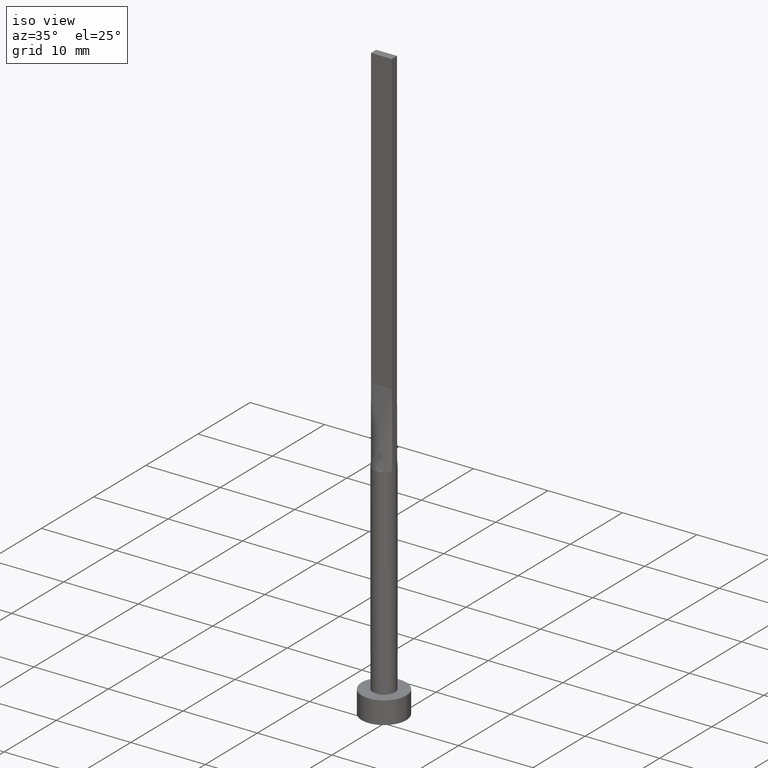
[diagram: clean part render]
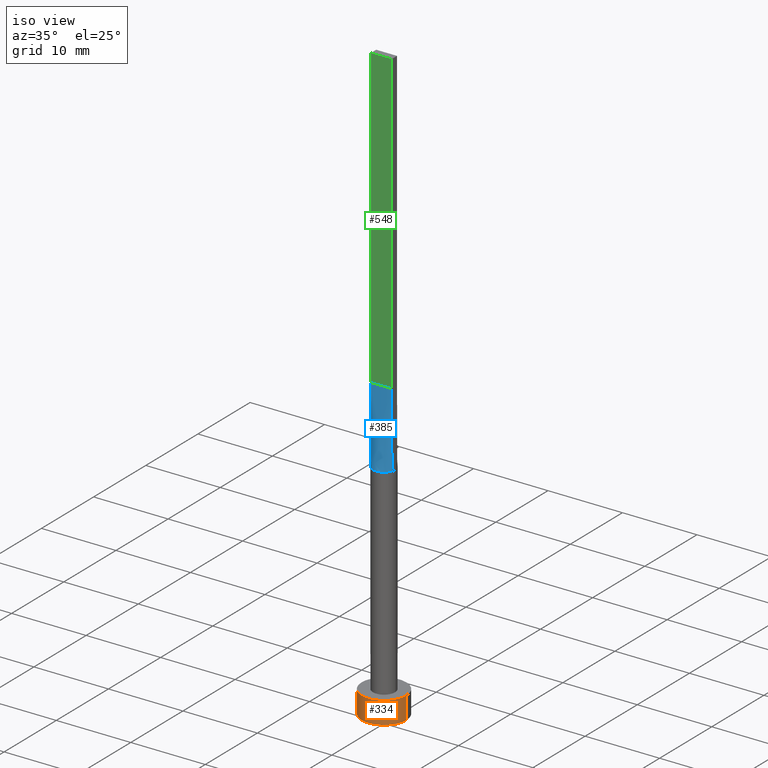
[diagram: same view with three faces highlighted in distinct colors, each labeled with its STEP entity id]
A machine part, iso view with three faces highlighted in distinct colors.
Their STEP definitions:

[orange] entity #334 — the highlighted cylindrical surface (edge-blend (fillet) strip) has radius 3 mm, axis along (-0, -0, -1).
#2 = VECTOR ( 'NONE', #118, 1000.000000000000000 ) ;
#46 = FACE_OUTER_BOUND ( 'NONE', #552, .T. ) ;
#49 = CARTESIAN_POINT ( 'NONE',  ( 0.000000000000000000, 0.000000000000000000, 3.000000000000000000 ) ) ;
#63 = CARTESIAN_POINT ( 'NONE',  ( -3.000000000000000444, 0.000000000000000000, 3.000000000000000000 ) ) ;
#93 = DIRECTION ( 'NONE',  ( -0.000000000000000000, -0.000000000000000000, -1.000000000000000000 ) ) ;
#118 = DIRECTION ( 'NONE',  ( -0.000000000000000000, -0.000000000000000000, -1.000000000000000000 ) ) ;
#119 = ORIENTED_EDGE ( 'NONE', *, *, #447, .F. ) ;
#121 = ORIENTED_EDGE ( 'NONE', *, *, #343, .T. ) ;
#130 = AXIS2_PLACEMENT_3D ( 'NONE', #49, #93, #537 ) ;
#148 = DIRECTION ( 'NONE',  ( 0.000000000000000000, 0.000000000000000000, 1.000000000000000000 ) ) ;
#160 = VERTEX_POINT ( 'NONE', #246 ) ;
#166 = AXIS2_PLACEMENT_3D ( 'NONE', #458, #148, #546 ) ;
#169 = CARTESIAN_POINT ( 'NONE',  ( -3.000000000000000444, 0.000000000000000000, 3.000000000000000000 ) ) ;
#176 = CYLINDRICAL_SURFACE ( 'NONE', #130, 3.000000000000000444 ) ;
#179 = EDGE_CURVE ( 'NONE', #218, #160, #422, .T. ) ;
#187 = EDGE_CURVE ( 'NONE', #379, #412, #253, .T. ) ;
#193 = CIRCLE ( 'NONE', #166, 3.000000000000000444 ) ;
#195 = CARTESIAN_POINT ( 'NONE',  ( 3.000000000000000444, 3.673940397442060361E-16, 3.000000000000000000 ) ) ;
#204 = CARTESIAN_POINT ( 'NONE',  ( 3.000000000000000444, 3.673940397442060361E-16, 3.000000000000000000 ) ) ;
#218 = VERTEX_POINT ( 'NONE', #195 ) ;
#242 = DIRECTION ( 'NONE',  ( -0.000000000000000000, -0.000000000000000000, -1.000000000000000000 ) ) ;
#246 = CARTESIAN_POINT ( 'NONE',  ( 3.000000000000000444, 3.673940397442060361E-16, 0.000000000000000000 ) ) ;
#253 = LINE ( 'NONE', #63, #339 ) ;
#283 = ORIENTED_EDGE ( 'NONE', *, *, #179, .F. ) ;
#334 = ADVANCED_FACE ( 'NONE', ( #46 ), #176, .T. ) ;
#339 = VECTOR ( 'NONE', #242, 1000.000000000000000 ) ;
#343 = EDGE_CURVE ( 'NONE', #412, #160, #369, .T. ) ;
#365 = DIRECTION ( 'NONE',  ( 1.000000000000000000, 0.000000000000000000, 0.000000000000000000 ) ) ;
#369 = CIRCLE ( 'NONE', #459, 3.000000000000000444 ) ;
#379 = VERTEX_POINT ( 'NONE', #169 ) ;
#406 = DIRECTION ( 'NONE',  ( 0.000000000000000000, 0.000000000000000000, 1.000000000000000000 ) ) ;
#412 = VERTEX_POINT ( 'NONE', #566 ) ;
#422 = LINE ( 'NONE', #204, #2 ) ;
#447 = EDGE_CURVE ( 'NONE', #379, #218, #193, .T. ) ;
#452 = CARTESIAN_POINT ( 'NONE',  ( 0.000000000000000000, 0.000000000000000000, 0.000000000000000000 ) ) ;
#458 = CARTESIAN_POINT ( 'NONE',  ( 0.000000000000000000, 0.000000000000000000, 3.000000000000000000 ) ) ;
#459 = AXIS2_PLACEMENT_3D ( 'NONE', #452, #406, #365 ) ;
#460 = ORIENTED_EDGE ( 'NONE', *, *, #187, .T. ) ;
#537 = DIRECTION ( 'NONE',  ( -1.000000000000000000, 0.000000000000000000, 0.000000000000000000 ) ) ;
#546 = DIRECTION ( 'NONE',  ( 1.000000000000000000, 0.000000000000000000, 0.000000000000000000 ) ) ;
#552 = EDGE_LOOP ( 'NONE', ( #283, #119, #460, #121 ) ) ;
#566 = CARTESIAN_POINT ( 'NONE',  ( -3.000000000000000444, 0.000000000000000000, 0.000000000000000000 ) ) ;

[blue] entity #385 — the highlighted face is a freeform B-spline surface patch.
#11 = AXIS2_PLACEMENT_3D ( 'NONE', #327, #374, #507 ) ;
#14 = EDGE_CURVE ( 'NONE', #143, #565, #286, .T. ) ;
#24 = CARTESIAN_POINT ( 'NONE',  ( -0.8182264876570952694, -1.266912425724809665, 29.99999999999999645 ) ) ;
#27 = CARTESIAN_POINT ( 'NONE',  ( -0.4666666666666679508, -0.4999999999999995559, 39.99999999999999289 ) ) ;
#29 = CARTESIAN_POINT ( 'NONE',  ( -1.373020107211261109, -0.6153643240040214124, 29.99999999999999645 ) ) ;
#67 = CARTESIAN_POINT ( 'NONE',  ( -1.316960349798174557, -0.7311494208568978248, 30.00000000000001421 ) ) ;
#76 = CARTESIAN_POINT ( 'NONE',  ( -1.161819288130434114, -0.9587178835757669271, 30.00000000000000355 ) ) ;
#81 = CARTESIAN_POINT ( 'NONE',  ( 0.8166666666666658747, -0.4999999999999997780, 39.99999999999999289 ) ) ;
#92 = CARTESIAN_POINT ( 'NONE',  ( -1.399999999999999911, -0.4999999999999995559, 40.00000000000000000 ) ) ;
#114 = CARTESIAN_POINT ( 'NONE',  ( 1.316960349798174335, -0.7311494208568987130, 30.00000000000000355 ) ) ;
#120 = CARTESIAN_POINT ( 'NONE',  ( -0.2333333333333347526, -0.4999999999999995559, 39.99999999999999289 ) ) ;
#124 = CARTESIAN_POINT ( 'NONE',  ( -1.399999999999999911, -0.4999999999999995559, 40.00000000000000000 ) ) ;
#131 = EDGE_CURVE ( 'NONE', #483, #143, #420, .T. ) ;
#143 = VERTEX_POINT ( 'NONE', #564 ) ;
#147 = VECTOR ( 'NONE', #527, 1000.000000000000114 ) ;
#158 = CARTESIAN_POINT ( 'NONE',  ( -1.166666666666666963, -0.4999999999999995559, 39.99999999999999289 ) ) ;
#161 = CARTESIAN_POINT ( 'NONE',  ( 1.062433464748102629, -1.070418989248103747, 30.00000000000001066 ) ) ;
#165 = CARTESIAN_POINT ( 'NONE',  ( -0.1166666666666681257, -0.4999999999999995559, 40.00000000000000000 ) ) ;
#203 = CARTESIAN_POINT ( 'NONE',  ( 0.4666666666666653418, -0.4999999999999995559, 39.99999999999999289 ) ) ;
#206 = CARTESIAN_POINT ( 'NONE',  ( -0.9333333333333340143, -0.4999999999999995559, 39.99999999999999289 ) ) ;
#208 = ORIENTED_EDGE ( 'NONE', *, *, #497, .F. ) ;
#210 = CARTESIAN_POINT ( 'NONE',  ( 0.3520402531411743752, -1.468082505288408113, 30.00000000000000355 ) ) ;
#231 = CARTESIAN_POINT ( 'NONE',  ( 1.399999999999999911, -0.4999999999999997780, 40.00000000000000000 ) ) ;
#248 = CARTESIAN_POINT ( 'NONE',  ( 1.412612867392256222, -0.5045045954972348090, 30.00000000000000000 ) ) ;
#250 = EDGE_LOOP ( 'NONE', ( #481, #397, #208, #382 ) ) ;
#252 = CARTESIAN_POINT ( 'NONE',  ( 0.9333333333333325710, -0.4999999999999997780, 39.99999999999999289 ) ) ;
#258 = CARTESIAN_POINT ( 'NONE',  ( 0.1761797990592584850, -1.499999999999999556, 30.00000000000000000 ) ) ;
#286 = CIRCLE ( 'NONE', #11, 1.500000000000000222 ) ;
#294 = CARTESIAN_POINT ( 'NONE',  ( 1.166666666666666075, -0.4999999999999997780, 39.99999999999999289 ) ) ;
#299 = CARTESIAN_POINT ( 'NONE',  ( -1.283333333333333437, -0.4999999999999995559, 39.99999999999999289 ) ) ;
#303 = CARTESIAN_POINT ( 'NONE',  ( -0.1761797990592596230, -1.500000000000000000, 30.00000000000000000 ) ) ;
#305 = CARTESIAN_POINT ( 'NONE',  ( 0.8182264876570946033, -1.266912425724810998, 30.00000000000000000 ) ) ;
#327 = CARTESIAN_POINT ( 'NONE',  ( 0.000000000000000000, 0.000000000000000000, 30.00000000000000000 ) ) ;
#342 = DIRECTION ( 'NONE',  ( -0.001261285608005553900, -0.0004504591457162553103, -0.9999991031221843185 ) ) ;
#347 = CARTESIAN_POINT ( 'NONE',  ( 0.2333333333333319215, -0.4999999999999995559, 39.99999999999999289 ) ) ;
#348 = CARTESIAN_POINT ( 'NONE',  ( -1.406306433696128178, -0.5022522977486166829, 35.00000000000000000 ) ) ;
#351 = CARTESIAN_POINT ( 'NONE',  ( 1.161819288130433669, -0.9587178835757682593, 30.00000000000000711 ) ) ;
#354 = CARTESIAN_POINT ( 'NONE',  ( 0.5833333333333321491, -0.4999999999999996669, 39.99999999999999289 ) ) ;
#358 = CARTESIAN_POINT ( 'NONE',  ( -0.5833333333333345916, -0.4999999999999995559, 39.99999999999999289 ) ) ;
#374 = DIRECTION ( 'NONE',  ( 0.000000000000000000, 0.000000000000000000, 1.000000000000000000 ) ) ;
#382 = ORIENTED_EDGE ( 'NONE', *, *, #131, .T. ) ;
#385 = ADVANCED_FACE ( 'NONE', ( #396 ), #521, .T. ) ;
#387 = CARTESIAN_POINT ( 'NONE',  ( 1.399999999999999911, -0.4999999999999997780, 40.00000000000000000 ) ) ;
#390 = LINE ( 'NONE', #530, #147 ) ;
#393 = CARTESIAN_POINT ( 'NONE',  ( 1.412648369950143756, -0.5045174509283282260, 30.00000000000000000 ) ) ;
#394 = CARTESIAN_POINT ( 'NONE',  ( -0.3520402531411755964, -1.468082505288407447, 30.00000000000001066 ) ) ;
#396 = FACE_OUTER_BOUND ( 'NONE', #250, .T. ) ;
#397 = ORIENTED_EDGE ( 'NONE', *, *, #402, .T. ) ;
#402 = EDGE_CURVE ( 'NONE', #565, #439, #390, .T. ) ;
#409 = LINE ( 'NONE', #92, #469 ) ;
#411 = CARTESIAN_POINT ( 'NONE',  ( -1.399999999999999911, -0.4999999999999995559, 40.00000000000000000 ) ) ;
#420 = LINE ( 'NONE', #348, #423 ) ;
#423 = VECTOR ( 'NONE', #342, 1000.000000000000114 ) ;
#429 = CARTESIAN_POINT ( 'NONE',  ( 1.373020107211260665, -0.6153643240040224116, 30.00000000000000355 ) ) ;
#438 = CARTESIAN_POINT ( 'NONE',  ( -1.062433464748102852, -1.070418989248103081, 30.00000000000000355 ) ) ;
#439 = VERTEX_POINT ( 'NONE', #231 ) ;
#469 = VECTOR ( 'NONE', #512, 1000.000000000000000 ) ;
#477 = CARTESIAN_POINT ( 'NONE',  ( 1.283333333333332993, -0.4999999999999997780, 39.99999999999999289 ) ) ;
#481 = ORIENTED_EDGE ( 'NONE', *, *, #14, .T. ) ;
#482 = CARTESIAN_POINT ( 'NONE',  ( -0.6732153042498583151, -1.351288176626052051, 30.00000000000000711 ) ) ;
#483 = VERTEX_POINT ( 'NONE', #411 ) ;
#484 = CARTESIAN_POINT ( 'NONE',  ( -1.412612867392256444, -0.5045045954972339208, 30.00000000000000000 ) ) ;
#497 = EDGE_CURVE ( 'NONE', #483, #439, #409, .T. ) ;
#507 = DIRECTION ( 'NONE',  ( 1.000000000000000000, 0.000000000000000000, 0.000000000000000000 ) ) ;
#512 = DIRECTION ( 'NONE',  ( 1.000000000000000000, -7.744301232039317914E-17, 0.000000000000000000 ) ) ;
#521 = B_SPLINE_SURFACE_WITH_KNOTS ( 'NONE', 3, 1, ( 
 ( #484, #124 ),
 ( #29, #299 ),
 ( #67, #158 ),
 ( #76, #206 ),
 ( #438, #570 ),
 ( #24, #358 ),
 ( #482, #27 ),
 ( #394, #120 ),
 ( #303, #165 ),
 ( #258, #533 ),
 ( #210, #347 ),
 ( #563, #203 ),
 ( #305, #354 ),
 ( #161, #81 ),
 ( #351, #252 ),
 ( #114, #294 ),
 ( #429, #477 ),
 ( #248, #387 ) ),
 .UNSPECIFIED., .F., .F., .F.,
 ( 4, 2, 2, 2, 2, 2, 2, 2, 4 ),
 ( 2, 2 ),
 ( 0.000000000000000000, 0.1250000000000000000, 0.2500000000000000000, 0.3750000000000000000, 0.5000000000000000000, 0.6250000000000000000, 0.7500000000000000000, 0.8750000000000000000, 1.000000000000000000 ),
 ( 0.000000000000000000, 1.000000000000000000 ),
 .UNSPECIFIED. ) ;
#527 = DIRECTION ( 'NONE',  ( -0.001261285608005532216, 0.0004504591457163203624, 0.9999991031221843185 ) ) ;
#530 = CARTESIAN_POINT ( 'NONE',  ( 1.406306433696127955, -0.5022522977486173490, 35.00000000000000000 ) ) ;
#533 = CARTESIAN_POINT ( 'NONE',  ( 0.1166666666666652113, -0.4999999999999995559, 39.99999999999999289 ) ) ;
#563 = CARTESIAN_POINT ( 'NONE',  ( 0.6732153042498572049, -1.351288176626052939, 30.00000000000000355 ) ) ;
#564 = CARTESIAN_POINT ( 'NONE',  ( -1.412629890847167724, -0.5045107419440655327, 30.00000000000000000 ) ) ;
#565 = VERTEX_POINT ( 'NONE', #393 ) ;
#570 = CARTESIAN_POINT ( 'NONE',  ( -0.8166666666666675400, -0.4999999999999995559, 39.99999999999999289 ) ) ;

[green] entity #548 — the highlighted planar face has unit normal (0, 1, -0).
#15 = DIRECTION ( 'NONE',  ( -0.000000000000000000, -0.000000000000000000, -1.000000000000000000 ) ) ;
#20 = EDGE_LOOP ( 'NONE', ( #377, #79, #391, #154 ) ) ;
#45 = DIRECTION ( 'NONE',  ( 7.744301232039317914E-17, 1.000000000000000000, -0.000000000000000000 ) ) ;
#55 = PLANE ( 'NONE',  #200 ) ;
#62 = EDGE_CURVE ( 'NONE', #355, #483, #516, .T. ) ;
#73 = LINE ( 'NONE', #255, #518 ) ;
#79 = ORIENTED_EDGE ( 'NONE', *, *, #432, .F. ) ;
#89 = CARTESIAN_POINT ( 'NONE',  ( -1.399999999999999911, -0.4999999999999995559, 80.00000000000000000 ) ) ;
#92 = CARTESIAN_POINT ( 'NONE',  ( -1.399999999999999911, -0.4999999999999995559, 40.00000000000000000 ) ) ;
#101 = DIRECTION ( 'NONE',  ( -0.000000000000000000, -0.000000000000000000, -1.000000000000000000 ) ) ;
#154 = ORIENTED_EDGE ( 'NONE', *, *, #62, .T. ) ;
#200 = AXIS2_PLACEMENT_3D ( 'NONE', #89, #45, #228 ) ;
#228 = DIRECTION ( 'NONE',  ( -1.000000000000000000, 7.744301232039317914E-17, 0.000000000000000000 ) ) ;
#231 = CARTESIAN_POINT ( 'NONE',  ( 1.399999999999999911, -0.4999999999999997780, 40.00000000000000000 ) ) ;
#255 = CARTESIAN_POINT ( 'NONE',  ( 1.399999999999999911, -0.4999999999999997780, 80.00000000000000000 ) ) ;
#257 = CARTESIAN_POINT ( 'NONE',  ( 1.399999999999999911, -0.4999999999999997780, 80.00000000000000000 ) ) ;
#310 = VECTOR ( 'NONE', #15, 1000.000000000000000 ) ;
#355 = VERTEX_POINT ( 'NONE', #433 ) ;
#377 = ORIENTED_EDGE ( 'NONE', *, *, #497, .T. ) ;
#391 = ORIENTED_EDGE ( 'NONE', *, *, #562, .F. ) ;
#398 = LINE ( 'NONE', #494, #559 ) ;
#399 = DIRECTION ( 'NONE',  ( 1.000000000000000000, -7.744301232039317914E-17, 0.000000000000000000 ) ) ;
#409 = LINE ( 'NONE', #92, #469 ) ;
#411 = CARTESIAN_POINT ( 'NONE',  ( -1.399999999999999911, -0.4999999999999995559, 40.00000000000000000 ) ) ;
#432 = EDGE_CURVE ( 'NONE', #574, #439, #73, .T. ) ;
#433 = CARTESIAN_POINT ( 'NONE',  ( -1.399999999999999911, -0.4999999999999995559, 80.00000000000000000 ) ) ;
#439 = VERTEX_POINT ( 'NONE', #231 ) ;
#455 = FACE_OUTER_BOUND ( 'NONE', #20, .T. ) ;
#467 = CARTESIAN_POINT ( 'NONE',  ( -1.399999999999999911, -0.4999999999999995559, 80.00000000000000000 ) ) ;
#469 = VECTOR ( 'NONE', #512, 1000.000000000000000 ) ;
#483 = VERTEX_POINT ( 'NONE', #411 ) ;
#494 = CARTESIAN_POINT ( 'NONE',  ( -1.399999999999999911, -0.4999999999999995559, 80.00000000000000000 ) ) ;
#497 = EDGE_CURVE ( 'NONE', #483, #439, #409, .T. ) ;
#512 = DIRECTION ( 'NONE',  ( 1.000000000000000000, -7.744301232039317914E-17, 0.000000000000000000 ) ) ;
#516 = LINE ( 'NONE', #467, #310 ) ;
#518 = VECTOR ( 'NONE', #101, 1000.000000000000000 ) ;
#548 = ADVANCED_FACE ( 'NONE', ( #455 ), #55, .F. ) ;
#559 = VECTOR ( 'NONE', #399, 1000.000000000000000 ) ;
#562 = EDGE_CURVE ( 'NONE', #355, #574, #398, .T. ) ;
#574 = VERTEX_POINT ( 'NONE', #257 ) ;